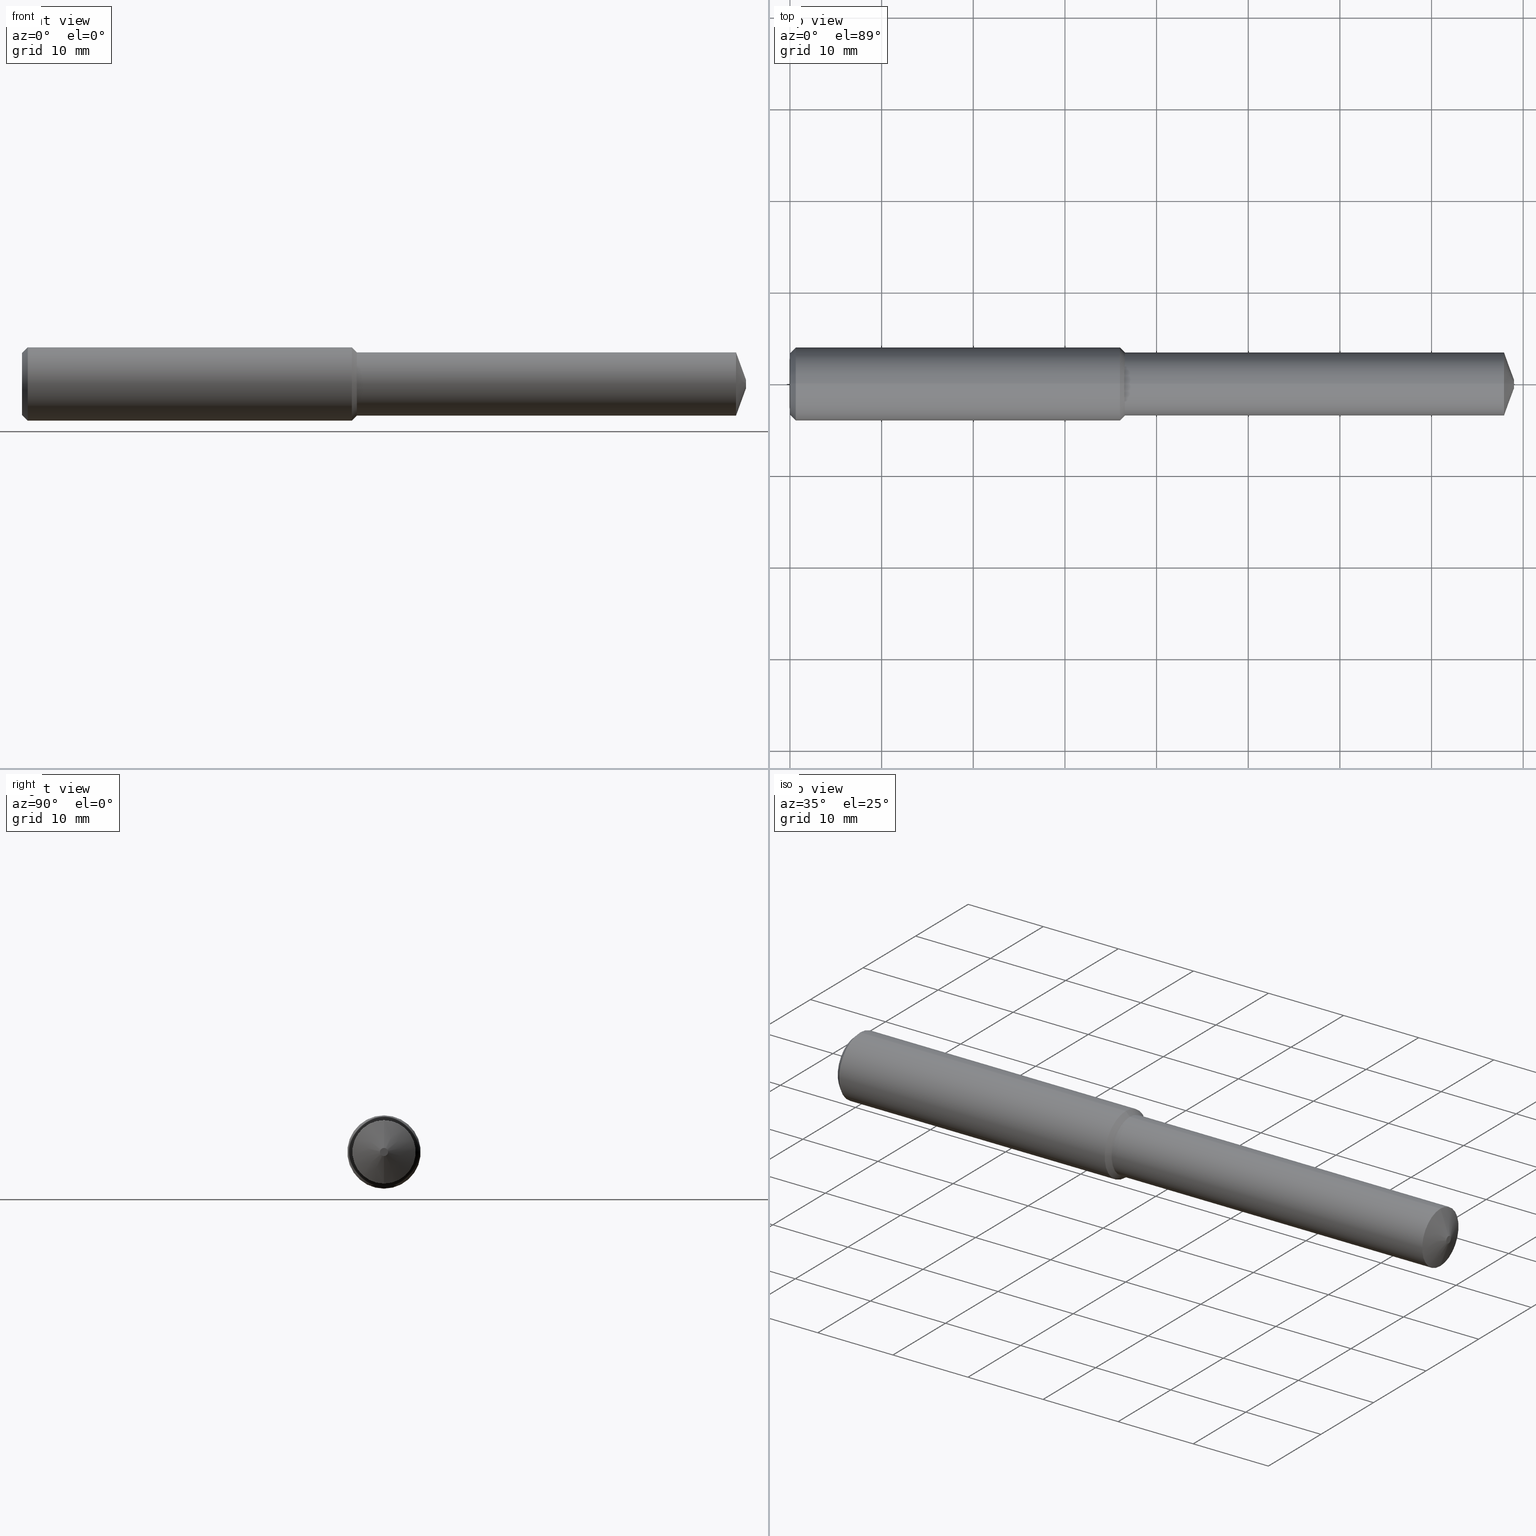
[diagram: canonical four-view strip — front | top / right | iso, engineering-drawing reading convention]
A machine part, canonical four-view strip (front | top / right | iso — engineering-drawing reading convention). The complete STEP part file that produces these views, byte-faithful:
ISO-10303-21;
HEADER;
FILE_DESCRIPTION (( 'STEP AP203' ),
    '1' );
FILE_NAME ('407000-DFX3-272A.STEP',
    '2024-10-02T18:51:29',
    ( '' ),
    ( '' ),
    'SwSTEP 2.0',
    'SolidWorks 2024',
    '' );
FILE_SCHEMA (( 'CONFIG_CONTROL_DESIGN' ));
ENDSEC;

DATA;
#1 = PERSON_AND_ORGANIZATION ( #157, #339 ) ;
#2 = CIRCLE ( 'NONE', #368, 0.1360000000000003983 ) ;
#3 = VERTEX_POINT ( 'NONE', #191 ) ;
#4 = AXIS2_PLACEMENT_3D ( 'NONE', #306, #21, #248 ) ;
#5 = DATE_AND_TIME ( #301, #243 ) ;
#6 = APPLICATION_CONTEXT ( 'configuration controlled 3d designs of mechanical parts and assemblies' ) ;
#7 = ORIENTED_EDGE ( 'NONE', *, *, #280, .F. ) ;
#8 = CC_DESIGN_DATE_AND_TIME_ASSIGNMENT ( #40, #207, ( #36 ) ) ;
#9 = ORIENTED_EDGE ( 'NONE', *, *, #309, .T. ) ;
#10 = DIRECTION ( 'NONE',  ( 0.000000000000000000, 0.000000000000000000, -1.000000000000000000 ) ) ;
#11 = VERTEX_POINT ( 'NONE', #312 ) ;
#12 = CIRCLE ( 'NONE', #315, 0.01750000000000038677 ) ;
#13 = ORIENTED_EDGE ( 'NONE', *, *, #256, .F. ) ;
#14 = EDGE_CURVE ( 'NONE', #99, #240, #189, .T. ) ;
#15 = DIMENSIONAL_EXPONENTS ( 1.000000000000000000, 0.000000000000000000, 0.000000000000000000, 0.000000000000000000, 0.000000000000000000, 0.000000000000000000, 0.000000000000000000 ) ;
#16 = LINE ( 'NONE', #78, #222 ) ;
#17 = DATE_TIME_ROLE ( 'classification_date' ) ;
#18 = DIRECTION ( 'NONE',  ( 1.000000000000000000, 0.000000000000000000, -0.000000000000000000 ) ) ;
#19 = APPROVAL ( #152, 'UNSPECIFIED' ) ;
#20 = EDGE_CURVE ( 'NONE', #240, #3, #183, .T. ) ;
#21 = DIRECTION ( 'NONE',  ( 1.000000000000000000, -0.000000000000000000, -0.000000000000000000 ) ) ;
#22 = CARTESIAN_POINT ( 'NONE',  ( 0.000000000000000000, 0.000000000000000000, 0.000000000000000000 ) ) ;
#23 = DIRECTION ( 'NONE',  ( 1.000000000000000000, -0.000000000000000000, -0.000000000000000000 ) ) ;
#24 = AXIS2_PLACEMENT_3D ( 'NONE', #171, #230, #378 ) ;
#25 = ADVANCED_BREP_SHAPE_REPRESENTATION ( '407000-DFX3-272A', ( #122, #192 ), #34 ) ;
#26 = CARTESIAN_POINT ( 'NONE',  ( 1.438803149606299403, 0.000000000000000000, -0.1360000000000001763 ) ) ;
#27 = DIRECTION ( 'NONE',  ( 1.000000000000000000, -0.000000000000000000, -0.000000000000000000 ) ) ;
#28 = CARTESIAN_POINT ( 'NONE',  ( -0.03808593750000075634, 0.000000000000000000, -0.1574803149606300023 ) ) ;
#29 = APPROVAL_PERSON_ORGANIZATION ( #345, #342, #219 ) ;
#30 = LINE ( 'NONE', #173, #346 ) ;
#31 = APPROVAL_ROLE ( '' ) ;
#32 = ORIENTED_EDGE ( 'NONE', *, *, #307, .F. ) ;
#33 = COORDINATED_UNIVERSAL_TIME_OFFSET ( 8, 0, .BEHIND. ) ;
#34 =( GEOMETRIC_REPRESENTATION_CONTEXT ( 3 ) GLOBAL_UNCERTAINTY_ASSIGNED_CONTEXT ( ( #74 ) ) GLOBAL_UNIT_ASSIGNED_CONTEXT ( ( #331, #244, #271 ) ) REPRESENTATION_CONTEXT ( 'NONE', 'WORKASPACE' ) );
#35 = ORIENTED_EDGE ( 'NONE', *, *, #374, .F. ) ;
#36 = PRODUCT_DEFINITION ( 'UNKNOWN', '', #118, #305 ) ;
#37 = PERSON_AND_ORGANIZATION_ROLE ( 'creator' ) ;
#38 = EDGE_LOOP ( 'NONE', ( #113, #180, #359, #266 ) ) ;
#39 = VECTOR ( 'NONE', #163, 39.37007874015748143 ) ;
#40 = DATE_AND_TIME ( #124, #281 ) ;
#41 = VERTEX_POINT ( 'NONE', #333 ) ;
#42 = ORIENTED_EDGE ( 'NONE', *, *, #288, .T. ) ;
#43 = PERSON_AND_ORGANIZATION_ROLE ( 'design_supplier' ) ;
#44 = CARTESIAN_POINT ( 'NONE',  ( 3.110236220472441193, 0.000000000000000000, 0.000000000000000000 ) ) ;
#45 = FACE_OUTER_BOUND ( 'NONE', #208, .T. ) ;
#46 = EDGE_CURVE ( 'NONE', #270, #41, #370, .T. ) ;
#47 = CARTESIAN_POINT ( 'NONE',  ( -0.03808593750000075634, 0.000000000000000000, 0.000000000000000000 ) ) ;
#48 = VECTOR ( 'NONE', #51, 39.37007874015748854 ) ;
#49 = CARTESIAN_POINT ( 'NONE',  ( 3.110236220472441193, 0.000000000000000000, 0.01750000000000038677 ) ) ;
#50 = DIRECTION ( 'NONE',  ( -0.000000000000000000, 0.000000000000000000, -1.000000000000000000 ) ) ;
#51 = DIRECTION ( 'NONE',  ( -0.3420201433256656598, 1.150791560227851502E-16, -0.9396926207859094271 ) ) ;
#52 = EDGE_CURVE ( 'NONE', #215, #182, #160, .T. ) ;
#53 = APPROVAL_PERSON_ORGANIZATION ( #238, #145, #31 ) ;
#54 = AXIS2_PLACEMENT_3D ( 'NONE', #87, #27, #168 ) ;
#55 = LINE ( 'NONE', #349, #365 ) ;
#56 = DIRECTION ( 'NONE',  ( 0.000000000000000000, 0.000000000000000000, 1.000000000000000000 ) ) ;
#57 = VECTOR ( 'NONE', #367, 39.37007874015748143 ) ;
#58 = ADVANCED_FACE ( 'NONE', ( #112 ), #253, .T. ) ;
#59 = CYLINDRICAL_SURFACE ( 'NONE', #98, 0.1360000000000002873 ) ;
#60 = CONICAL_SURFACE ( 'NONE', #166, 0.1360000000000001763, 0.7853981633974407295 ) ;
#61 = ADVANCED_FACE ( 'NONE', ( #308 ), #369, .T. ) ;
#62 = DIRECTION ( 'NONE',  ( 0.000000000000000000, 0.000000000000000000, -1.000000000000000000 ) ) ;
#63 = VECTOR ( 'NONE', #286, 39.37007874015748143 ) ;
#64 = ADVANCED_FACE ( 'NONE', ( #45 ), #285, .T. ) ;
#65 = EDGE_LOOP ( 'NONE', ( #326, #73, #323, #185 ) ) ;
#66 = FACE_OUTER_BOUND ( 'NONE', #101, .T. ) ;
#67 = ORIENTED_EDGE ( 'NONE', *, *, #14, .T. ) ;
#68 = CYLINDRICAL_SURFACE ( 'NONE', #267, 0.1574803149606300023 ) ;
#69 = ORIENTED_EDGE ( 'NONE', *, *, #117, .T. ) ;
#70 = ORIENTED_EDGE ( 'NONE', *, *, #229, .F. ) ;
#71 = PRODUCT_RELATED_PRODUCT_CATEGORY ( 'detail', '', ( #121 ) ) ;
#72 = DIRECTION ( 'NONE',  ( 0.000000000000000000, 0.000000000000000000, -1.000000000000000000 ) ) ;
#73 = ORIENTED_EDGE ( 'NONE', *, *, #280, .T. ) ;
#74 = UNCERTAINTY_MEASURE_WITH_UNIT (LENGTH_MEASURE( 1.000000000000000082E-05 ), #331, 'distance_accuracy_value', 'NONE');
#75 = DIRECTION ( 'NONE',  ( 1.000000000000000000, -0.000000000000000000, -0.000000000000000000 ) ) ;
#76 = VECTOR ( 'NONE', #375, 39.37007874015748143 ) ;
#77 = CARTESIAN_POINT ( 'NONE',  ( 1.438803149606299403, 0.000000000000000000, 0.1360000000000001763 ) ) ;
#78 = CARTESIAN_POINT ( 'NONE',  ( 0.02500000000000000139, 0.000000000000000000, -0.1574803149606299191 ) ) ;
#79 = CC_DESIGN_PERSON_AND_ORGANIZATION_ASSIGNMENT ( #1, #205, ( #36 ) ) ;
#80 = EDGE_LOOP ( 'NONE', ( #213, #242, #70, #131 ) ) ;
#81 = CC_DESIGN_APPROVAL ( #342, ( #151 ) ) ;
#82 = DIRECTION ( 'NONE',  ( 0.000000000000000000, 0.000000000000000000, 1.000000000000000000 ) ) ;
#83 = ADVANCED_FACE ( 'NONE', ( #194 ), #103, .T. ) ;
#84 = DIRECTION ( 'NONE',  ( 0.000000000000000000, 0.000000000000000000, -1.000000000000000000 ) ) ;
#85 = LINE ( 'NONE', #377, #48 ) ;
#86 = SHAPE_DEFINITION_REPRESENTATION ( #123, #25 ) ;
#87 = CARTESIAN_POINT ( 'NONE',  ( 0.02500000000000000139, 0.000000000000000000, 0.000000000000000000 ) ) ;
#88 = DIRECTION ( 'NONE',  ( 0.000000000000000000, 0.000000000000000000, -1.000000000000000000 ) ) ;
#89 = LINE ( 'NONE', #258, #63 ) ;
#90 = AXIS2_PLACEMENT_3D ( 'NONE', #106, #161, #82 ) ;
#91 = APPROVAL_DATE_TIME ( #5, #145 ) ;
#92 = ORIENTED_EDGE ( 'NONE', *, *, #20, .T. ) ;
#93 = CARTESIAN_POINT ( 'NONE',  ( 3.061616997868361794E-19, 0.1324803149606299246, 0.000000000000000000 ) ) ;
#94 = ORIENTED_EDGE ( 'NONE', *, *, #309, .F. ) ;
#95 = PERSON_AND_ORGANIZATION ( #157, #339 ) ;
#96 = ORIENTED_EDGE ( 'NONE', *, *, #109, .T. ) ;
#97 = APPLICATION_PROTOCOL_DEFINITION ( 'international standard', 'config_control_design', 1994, #6 ) ;
#98 = AXIS2_PLACEMENT_3D ( 'NONE', #341, #150, #235 ) ;
#99 = VERTEX_POINT ( 'NONE', #136 ) ;
#100 = CARTESIAN_POINT ( 'NONE',  ( -0.03808593750000075634, 0.000000000000000000, 0.000000000000000000 ) ) ;
#101 = EDGE_LOOP ( 'NONE', ( #158, #7 ) ) ;
#102 = COORDINATED_UNIVERSAL_TIME_OFFSET ( 8, 0, .BEHIND. ) ;
#103 = PLANE ( 'NONE',  #226 ) ;
#104 = CC_DESIGN_PERSON_AND_ORGANIZATION_ASSIGNMENT ( #108, #43, ( #118 ) ) ;
#105 = DATE_AND_TIME ( #223, #172 ) ;
#106 = CARTESIAN_POINT ( 'NONE',  ( 3.110236220472441193, 0.000000000000000000, 0.000000000000000000 ) ) ;
#107 = CC_DESIGN_APPROVAL ( #145, ( #36 ) ) ;
#108 = PERSON_AND_ORGANIZATION ( #157, #339 ) ;
#109 = EDGE_CURVE ( 'NONE', #270, #362, #186, .T. ) ;
#110 = DIRECTION ( 'NONE',  ( 0.000000000000000000, 0.000000000000000000, 1.000000000000000000 ) ) ;
#111 = AXIS2_PLACEMENT_3D ( 'NONE', #340, #335, #283 ) ;
#112 = FACE_OUTER_BOUND ( 'NONE', #80, .T. ) ;
#113 = ORIENTED_EDGE ( 'NONE', *, *, #288, .F. ) ;
#114 = DIRECTION ( 'NONE',  ( 1.000000000000000000, -0.000000000000000000, -0.000000000000000000 ) ) ;
#115 = DIRECTION ( 'NONE',  ( 1.000000000000000000, -0.000000000000000000, -0.000000000000000000 ) ) ;
#116 = CARTESIAN_POINT ( 'NONE',  ( 3.110236220472441193, 0.000000000000000000, 0.000000000000000000 ) ) ;
#117 = EDGE_CURVE ( 'NONE', #178, #99, #352, .T. ) ;
#118 = PRODUCT_DEFINITION_FORMATION_WITH_SPECIFIED_SOURCE ( 'ANY', '', #121, .NOT_KNOWN. ) ;
#119 = DIRECTION ( 'NONE',  ( -1.000000000000000000, 0.000000000000000000, 0.000000000000000000 ) ) ;
#120 = CARTESIAN_POINT ( 'NONE',  ( 0.02500000000000000139, 1.928577636452525534E-17, 0.1574803149606299191 ) ) ;
#121 = PRODUCT ( '407000-DFX3-272A', '407000-DFX3-272A', '', ( #262 ) ) ;
#122 = MANIFOLD_SOLID_BREP ( 'Body', #293 ) ;
#123 = PRODUCT_DEFINITION_SHAPE ( 'NONE', 'NONE',  #36 ) ;
#124 = CALENDAR_DATE ( 2024, 2, 10 ) ;
#125 = ORIENTED_EDGE ( 'NONE', *, *, #109, .F. ) ;
#126 = CALENDAR_DATE ( 2024, 2, 10 ) ;
#127 = ORIENTED_EDGE ( 'NONE', *, *, #46, .T. ) ;
#128 = ORIENTED_EDGE ( 'NONE', *, *, #196, .F. ) ;
#129 = DIRECTION ( 'NONE',  ( 1.000000000000000000, -0.000000000000000000, -0.000000000000000000 ) ) ;
#130 = CIRCLE ( 'NONE', #24, 0.1574803149606300579 ) ;
#131 = ORIENTED_EDGE ( 'NONE', *, *, #268, .F. ) ;
#132 = ADVANCED_FACE ( 'NONE', ( #363 ), #60, .T. ) ;
#133 = EDGE_LOOP ( 'NONE', ( #279, #296, #357, #245 ) ) ;
#134 = CARTESIAN_POINT ( 'NONE',  ( -0.03808593750000075634, 0.000000000000000000, 0.000000000000000000 ) ) ;
#135 = PERSON_AND_ORGANIZATION_ROLE ( 'classification_officer' ) ;
#136 = CARTESIAN_POINT ( 'NONE',  ( 0.000000000000000000, 1.775496786559105798E-17, 0.1324803149606299246 ) ) ;
#137 = CIRCLE ( 'NONE', #233, 0.1574803149606300579 ) ;
#138 = CARTESIAN_POINT ( 'NONE',  ( 1.417322834645669216, 0.000000000000000000, 0.1574803149606300579 ) ) ;
#139 = CC_DESIGN_PERSON_AND_ORGANIZATION_ASSIGNMENT ( #298, #37, ( #118 ) ) ;
#140 = ORIENTED_EDGE ( 'NONE', *, *, #198, .F. ) ;
#141 = DIRECTION ( 'NONE',  ( 1.000000000000000000, -0.000000000000000000, -0.000000000000000000 ) ) ;
#142 = DIRECTION ( 'NONE',  ( 0.000000000000000000, 0.000000000000000000, -1.000000000000000000 ) ) ;
#143 = EDGE_CURVE ( 'NONE', #215, #332, #334, .T. ) ;
#144 = CARTESIAN_POINT ( 'NONE',  ( 1.438803149606299403, 1.665519646840403453E-17, 0.1360000000000001763 ) ) ;
#145 = APPROVAL ( #177, 'UNSPECIFIED' ) ;
#146 = FACE_OUTER_BOUND ( 'NONE', #133, .T. ) ;
#147 = APPROVAL_PERSON_ORGANIZATION ( #324, #19, #155 ) ;
#148 = CIRCLE ( 'NONE', #54, 0.1574803149606299191 ) ;
#149 = VECTOR ( 'NONE', #114, 39.37007874015748143 ) ;
#150 = DIRECTION ( 'NONE',  ( 1.000000000000000000, -0.000000000000000000, -0.000000000000000000 ) ) ;
#151 = SECURITY_CLASSIFICATION ( '', '', #304 ) ;
#152 = APPROVAL_STATUS ( 'not_yet_approved' ) ;
#153 = ORIENTED_EDGE ( 'NONE', *, *, #268, .T. ) ;
#154 = EDGE_LOOP ( 'NONE', ( #69, #67, #140, #221 ) ) ;
#155 = APPROVAL_ROLE ( '' ) ;
#156 = ORIENTED_EDGE ( 'NONE', *, *, #46, .F. ) ;
#157 = PERSON ( 'UNSPECIFIED', 'UNSPECIFIED', 'UNSPECIFIED', ('UNSPECIFIED'), ('UNSPECIFIED'), ('UNSPECIFIED') ) ;
#158 = ORIENTED_EDGE ( 'NONE', *, *, #117, .F. ) ;
#159 = CONICAL_SURFACE ( 'NONE', #199, 0.1574803149606299191, 0.7853981633974483900 ) ;
#160 = LINE ( 'NONE', #77, #39 ) ;
#161 = DIRECTION ( 'NONE',  ( -1.000000000000000000, 0.000000000000000000, 0.000000000000000000 ) ) ;
#162 = DIRECTION ( 'NONE',  ( 0.000000000000000000, 0.000000000000000000, -1.000000000000000000 ) ) ;
#163 = DIRECTION ( 'NONE',  ( -0.7071067811865529018, 0.000000000000000000, 0.7071067811865421326 ) ) ;
#164 = CARTESIAN_POINT ( 'NONE',  ( 3.110236220472441193, 0.000000000000000000, 0.000000000000000000 ) ) ;
#165 = DIRECTION ( 'NONE',  ( 1.000000000000000000, -0.000000000000000000, -0.000000000000000000 ) ) ;
#166 = AXIS2_PLACEMENT_3D ( 'NONE', #251, #187, #110 ) ;
#167 = CIRCLE ( 'NONE', #4, 0.1360000000000001763 ) ;
#168 = DIRECTION ( 'NONE',  ( 0.000000000000000000, 0.000000000000000000, -1.000000000000000000 ) ) ;
#169 = EDGE_CURVE ( 'NONE', #332, #215, #167, .T. ) ;
#170 = CARTESIAN_POINT ( 'NONE',  ( 0.02500000000000000139, 0.000000000000000000, 0.000000000000000000 ) ) ;
#171 = CARTESIAN_POINT ( 'NONE',  ( 1.417322834645669216, 0.000000000000000000, 0.000000000000000000 ) ) ;
#172 = LOCAL_TIME ( 11, 51, 29.00000000000000000, #190 ) ;
#173 = CARTESIAN_POINT ( 'NONE',  ( -0.03808593750000075634, 0.000000000000000000, -0.1360000000000002873 ) ) ;
#174 = PLANE ( 'NONE',  #220 ) ;
#175 = EDGE_LOOP ( 'NONE', ( #96, #372 ) ) ;
#176 = CC_DESIGN_DATE_AND_TIME_ASSIGNMENT ( #105, #17, ( #151 ) ) ;
#177 = APPROVAL_STATUS ( 'not_yet_approved' ) ;
#178 = VERTEX_POINT ( 'NONE', #276 ) ;
#179 = EDGE_CURVE ( 'NONE', #178, #3, #16, .T. ) ;
#180 = ORIENTED_EDGE ( 'NONE', *, *, #143, .T. ) ;
#181 = CARTESIAN_POINT ( 'NONE',  ( 0.000000000000000000, 0.000000000000000000, 0.000000000000000000 ) ) ;
#182 = VERTEX_POINT ( 'NONE', #138 ) ;
#183 = CIRCLE ( 'NONE', #111, 0.1574803149606299191 ) ;
#184 = APPLICATION_PROTOCOL_DEFINITION ( 'international standard', 'config_control_design', 1994, #354 ) ;
#185 = ORIENTED_EDGE ( 'NONE', *, *, #20, .F. ) ;
#186 = CIRCLE ( 'NONE', #254, 0.01750000000000038677 ) ;
#187 = DIRECTION ( 'NONE',  ( -1.000000000000000000, 0.000000000000000000, 0.000000000000000000 ) ) ;
#188 = DIRECTION ( 'NONE',  ( 0.000000000000000000, 0.000000000000000000, -1.000000000000000000 ) ) ;
#189 = LINE ( 'NONE', #252, #57 ) ;
#190 = COORDINATED_UNIVERSAL_TIME_OFFSET ( 8, 0, .BEHIND. ) ;
#191 = CARTESIAN_POINT ( 'NONE',  ( 0.02500000000000000139, 0.000000000000000000, -0.1574803149606299191 ) ) ;
#192 = AXIS2_PLACEMENT_3D ( 'NONE', #181, #358, #264 ) ;
#193 = AXIS2_PLACEMENT_3D ( 'NONE', #116, #119, #56 ) ;
#194 = FACE_OUTER_BOUND ( 'NONE', #175, .T. ) ;
#195 = FACE_OUTER_BOUND ( 'NONE', #154, .T. ) ;
#196 = EDGE_CURVE ( 'NONE', #362, #11, #85, .T. ) ;
#197 = DIRECTION ( 'NONE',  ( 1.000000000000000000, -0.000000000000000000, -0.000000000000000000 ) ) ;
#198 = EDGE_CURVE ( 'NONE', #3, #240, #148, .T. ) ;
#199 = AXIS2_PLACEMENT_3D ( 'NONE', #292, #141, #201 ) ;
#200 = CARTESIAN_POINT ( 'NONE',  ( 1.417322834645669216, 0.000000000000000000, 0.000000000000000000 ) ) ;
#201 = DIRECTION ( 'NONE',  ( 0.000000000000000000, 0.000000000000000000, -1.000000000000000000 ) ) ;
#202 = FACE_OUTER_BOUND ( 'NONE', #65, .T. ) ;
#203 = AXIS2_PLACEMENT_3D ( 'NONE', #134, #227, #224 ) ;
#204 = CONICAL_SURFACE ( 'NONE', #246, 0.1574803149606299191, 0.7853981633974483900 ) ;
#205 = PERSON_AND_ORGANIZATION_ROLE ( 'creator' ) ;
#206 = ORIENTED_EDGE ( 'NONE', *, *, #330, .F. ) ;
#207 = DATE_TIME_ROLE ( 'creation_date' ) ;
#208 = EDGE_LOOP ( 'NONE', ( #128, #125, #127, #355 ) ) ;
#209 = APPROVAL_DATE_TIME ( #356, #19 ) ;
#210 = EDGE_LOOP ( 'NONE', ( #299, #272, #325, #310 ) ) ;
#211 = AXIS2_PLACEMENT_3D ( 'NONE', #255, #320, #88 ) ;
#212 = COORDINATED_UNIVERSAL_TIME_OFFSET ( 8, 0, .BEHIND. ) ;
#213 = ORIENTED_EDGE ( 'NONE', *, *, #198, .T. ) ;
#214 = LENGTH_MEASURE_WITH_UNIT ( LENGTH_MEASURE( 0.02539999999999999897 ), #237 );
#215 = VERTEX_POINT ( 'NONE', #144 ) ;
#216 = APPROVAL_DATE_TIME ( #366, #342 ) ;
#217 = DIRECTION ( 'NONE',  ( 1.000000000000000000, -0.000000000000000000, -0.000000000000000000 ) ) ;
#218 = AXIS2_PLACEMENT_3D ( 'NONE', #22, #217, #247 ) ;
#219 = APPROVAL_ROLE ( '' ) ;
#220 = AXIS2_PLACEMENT_3D ( 'NONE', #93, #322, #295 ) ;
#221 = ORIENTED_EDGE ( 'NONE', *, *, #179, .F. ) ;
#222 = VECTOR ( 'NONE', #282, 39.37007874015748143 ) ;
#223 = CALENDAR_DATE ( 2024, 2, 10 ) ;
#224 = DIRECTION ( 'NONE',  ( 0.000000000000000000, 0.000000000000000000, -1.000000000000000000 ) ) ;
#225 = DIRECTION ( 'NONE',  ( 1.000000000000000000, -0.000000000000000000, -0.000000000000000000 ) ) ;
#226 = AXIS2_PLACEMENT_3D ( 'NONE', #44, #18, #50 ) ;
#227 = DIRECTION ( 'NONE',  ( 1.000000000000000000, -0.000000000000000000, -0.000000000000000000 ) ) ;
#228 = CIRCLE ( 'NONE', #211, 0.1360000000000003983 ) ;
#229 = EDGE_CURVE ( 'NONE', #353, #182, #137, .T. ) ;
#230 = DIRECTION ( 'NONE',  ( 1.000000000000000000, -0.000000000000000000, -0.000000000000000000 ) ) ;
#231 = LINE ( 'NONE', #376, #76 ) ;
#232 = CARTESIAN_POINT ( 'NONE',  ( 3.110236220472441193, 0.000000000000000000, 0.01750000000000038677 ) ) ;
#233 = AXIS2_PLACEMENT_3D ( 'NONE', #200, #261, #62 ) ;
#234 = FACE_OUTER_BOUND ( 'NONE', #273, .T. ) ;
#235 = DIRECTION ( 'NONE',  ( 0.000000000000000000, 0.000000000000000000, -1.000000000000000000 ) ) ;
#236 = ADVANCED_FACE ( 'NONE', ( #202 ), #204, .T. ) ;
#237 =( LENGTH_UNIT ( ) NAMED_UNIT ( * ) SI_UNIT ( $, .METRE. ) );
#238 = PERSON_AND_ORGANIZATION ( #157, #339 ) ;
#239 = EDGE_CURVE ( 'NONE', #332, #353, #89, .T. ) ;
#240 = VERTEX_POINT ( 'NONE', #120 ) ;
#241 = DIRECTION ( 'NONE',  ( 1.000000000000000000, -0.000000000000000000, -0.000000000000000000 ) ) ;
#242 = ORIENTED_EDGE ( 'NONE', *, *, #256, .T. ) ;
#243 = LOCAL_TIME ( 11, 51, 29.00000000000000000, #33 ) ;
#244 =( NAMED_UNIT ( * ) PLANE_ANGLE_UNIT ( ) SI_UNIT ( $, .RADIAN. ) );
#245 = ORIENTED_EDGE ( 'NONE', *, *, #52, .F. ) ;
#246 = AXIS2_PLACEMENT_3D ( 'NONE', #170, #257, #84 ) ;
#247 = DIRECTION ( 'NONE',  ( 0.000000000000000000, 0.000000000000000000, -1.000000000000000000 ) ) ;
#248 = DIRECTION ( 'NONE',  ( 0.000000000000000000, 0.000000000000000000, -1.000000000000000000 ) ) ;
#249 = CIRCLE ( 'NONE', #265, 0.1324803149606299246 ) ;
#250 = LOCAL_TIME ( 11, 51, 29.00000000000000000, #102 ) ;
#251 = CARTESIAN_POINT ( 'NONE',  ( 1.438803149606299403, 0.000000000000000000, 0.000000000000000000 ) ) ;
#252 = CARTESIAN_POINT ( 'NONE',  ( 0.02500000000000000139, 1.928577636452524610E-17, 0.1574803149606299191 ) ) ;
#253 = CYLINDRICAL_SURFACE ( 'NONE', #274, 0.1574803149606300023 ) ;
#254 = AXIS2_PLACEMENT_3D ( 'NONE', #164, #23, #338 ) ;
#255 = CARTESIAN_POINT ( 'NONE',  ( 3.067105747711896591, 0.000000000000000000, 0.000000000000000000 ) ) ;
#256 = EDGE_CURVE ( 'NONE', #240, #182, #231, .T. ) ;
#257 = DIRECTION ( 'NONE',  ( 1.000000000000000000, -0.000000000000000000, -0.000000000000000000 ) ) ;
#258 = CARTESIAN_POINT ( 'NONE',  ( 1.438803149606299403, 1.665519646840402529E-17, -0.1360000000000001763 ) ) ;
#259 = CARTESIAN_POINT ( 'NONE',  ( 1.438803149606299403, 0.000000000000000000, 0.000000000000000000 ) ) ;
#260 = AXIS2_PLACEMENT_3D ( 'NONE', #259, #290, #350 ) ;
#261 = DIRECTION ( 'NONE',  ( 1.000000000000000000, -0.000000000000000000, -0.000000000000000000 ) ) ;
#262 = MECHANICAL_CONTEXT ( 'NONE', #354, 'mechanical' ) ;
#263 = ADVANCED_FACE ( 'NONE', ( #318 ), #361, .T. ) ;
#264 = DIRECTION ( 'NONE',  ( 1.000000000000000000, 0.000000000000000000, 0.000000000000000000 ) ) ;
#265 = AXIS2_PLACEMENT_3D ( 'NONE', #314, #197, #321 ) ;
#266 = ORIENTED_EDGE ( 'NONE', *, *, #344, .F. ) ;
#267 = AXIS2_PLACEMENT_3D ( 'NONE', #100, #241, #10 ) ;
#268 = EDGE_CURVE ( 'NONE', #3, #353, #289, .T. ) ;
#269 = COORDINATED_UNIVERSAL_TIME_OFFSET ( 8, 0, .BEHIND. ) ;
#270 = VERTEX_POINT ( 'NONE', #232 ) ;
#271 =( NAMED_UNIT ( * ) SI_UNIT ( $, .STERADIAN. ) SOLID_ANGLE_UNIT ( ) );
#272 = ORIENTED_EDGE ( 'NONE', *, *, #143, .F. ) ;
#273 = EDGE_LOOP ( 'NONE', ( #313, #42, #94, #32 ) ) ;
#274 = AXIS2_PLACEMENT_3D ( 'NONE', #47, #75, #188 ) ;
#275 = PERSON_AND_ORGANIZATION ( #157, #339 ) ;
#276 = CARTESIAN_POINT ( 'NONE',  ( 0.000000000000000000, 0.000000000000000000, -0.1324803149606299246 ) ) ;
#277 = ADVANCED_FACE ( 'NONE', ( #195 ), #159, .T. ) ;
#278 = CALENDAR_DATE ( 2024, 2, 10 ) ;
#279 = ORIENTED_EDGE ( 'NONE', *, *, #169, .F. ) ;
#280 = EDGE_CURVE ( 'NONE', #99, #178, #249, .T. ) ;
#281 = LOCAL_TIME ( 11, 51, 29.00000000000000000, #212 ) ;
#282 = DIRECTION ( 'NONE',  ( 0.7071067811865474617, 0.000000000000000000, -0.7071067811865475727 ) ) ;
#283 = DIRECTION ( 'NONE',  ( 0.000000000000000000, 0.000000000000000000, -1.000000000000000000 ) ) ;
#284 = DIRECTION ( 'NONE',  ( -0.3420201433256656598, 0.000000000000000000, 0.9396926207859094271 ) ) ;
#285 = CONICAL_SURFACE ( 'NONE', #90, 0.01750000000000038677, 1.221730476396033938 ) ;
#286 = DIRECTION ( 'NONE',  ( -0.7071067811865529018, 8.659560562354867531E-17, -0.7071067811865421326 ) ) ;
#287 = FACE_OUTER_BOUND ( 'NONE', #302, .T. ) ;
#288 = EDGE_CURVE ( 'NONE', #215, #41, #55, .T. ) ;
#289 = LINE ( 'NONE', #28, #149 ) ;
#290 = DIRECTION ( 'NONE',  ( -1.000000000000000000, 0.000000000000000000, 0.000000000000000000 ) ) ;
#291 = CC_DESIGN_SECURITY_CLASSIFICATION ( #151, ( #118 ) ) ;
#292 = CARTESIAN_POINT ( 'NONE',  ( 0.02500000000000000139, 0.000000000000000000, 0.000000000000000000 ) ) ;
#293 = CLOSED_SHELL ( 'NONE', ( #277, #58, #300, #348, #263, #371, #83, #64, #61, #132, #364, #236 ) ) ;
#294 = CC_DESIGN_PERSON_AND_ORGANIZATION_ASSIGNMENT ( #95, #351, ( #121 ) ) ;
#295 = DIRECTION ( 'NONE',  ( 0.000000000000000000, 0.000000000000000000, 1.000000000000000000 ) ) ;
#296 = ORIENTED_EDGE ( 'NONE', *, *, #239, .T. ) ;
#297 = CONICAL_SURFACE ( 'NONE', #260, 0.1360000000000001763, 0.7853981633974407295 ) ;
#298 = PERSON_AND_ORGANIZATION ( #157, #339 ) ;
#299 = ORIENTED_EDGE ( 'NONE', *, *, #239, .F. ) ;
#300 = ADVANCED_FACE ( 'NONE', ( #146 ), #297, .T. ) ;
#301 = CALENDAR_DATE ( 2024, 2, 10 ) ;
#302 = EDGE_LOOP ( 'NONE', ( #13, #92, #153, #206 ) ) ;
#303 = EDGE_LOOP ( 'NONE', ( #35, #329, #9, #156 ) ) ;
#304 = SECURITY_CLASSIFICATION_LEVEL ( 'unclassified' ) ;
#305 = DESIGN_CONTEXT ( 'detailed design', #6, 'design' ) ;
#306 = CARTESIAN_POINT ( 'NONE',  ( 1.438803149606299403, 0.000000000000000000, 0.000000000000000000 ) ) ;
#307 = EDGE_CURVE ( 'NONE', #332, #11, #30, .T. ) ;
#308 = FACE_OUTER_BOUND ( 'NONE', #38, .T. ) ;
#309 = EDGE_CURVE ( 'NONE', #11, #41, #228, .T. ) ;
#310 = ORIENTED_EDGE ( 'NONE', *, *, #330, .T. ) ;
#311 = APPROVAL_STATUS ( 'not_yet_approved' ) ;
#312 = CARTESIAN_POINT ( 'NONE',  ( 3.067105747711896591, 1.665519646840405302E-17, -0.1360000000000003983 ) ) ;
#313 = ORIENTED_EDGE ( 'NONE', *, *, #169, .T. ) ;
#314 = CARTESIAN_POINT ( 'NONE',  ( 0.000000000000000000, 0.000000000000000000, 0.000000000000000000 ) ) ;
#315 = AXIS2_PLACEMENT_3D ( 'NONE', #328, #129, #72 ) ;
#316 = CARTESIAN_POINT ( 'NONE',  ( 3.110236220472441193, 9.399164183455982845E-18, -0.01750000000000038677 ) ) ;
#317 = AXIS2_PLACEMENT_3D ( 'NONE', #336, #225, #162 ) ;
#318 = FACE_OUTER_BOUND ( 'NONE', #303, .T. ) ;
#319 = VECTOR ( 'NONE', #284, 39.37007874015748854 ) ;
#320 = DIRECTION ( 'NONE',  ( 1.000000000000000000, -0.000000000000000000, -0.000000000000000000 ) ) ;
#321 = DIRECTION ( 'NONE',  ( 0.000000000000000000, 0.000000000000000000, -1.000000000000000000 ) ) ;
#322 = DIRECTION ( 'NONE',  ( -1.000000000000000000, 0.000000000000000000, 0.000000000000000000 ) ) ;
#323 = ORIENTED_EDGE ( 'NONE', *, *, #179, .T. ) ;
#324 = PERSON_AND_ORGANIZATION ( #157, #339 ) ;
#325 = ORIENTED_EDGE ( 'NONE', *, *, #52, .T. ) ;
#326 = ORIENTED_EDGE ( 'NONE', *, *, #14, .F. ) ;
#327 = CC_DESIGN_APPROVAL ( #19, ( #118 ) ) ;
#328 = CARTESIAN_POINT ( 'NONE',  ( 3.110236220472441193, 0.000000000000000000, 0.000000000000000000 ) ) ;
#329 = ORIENTED_EDGE ( 'NONE', *, *, #196, .T. ) ;
#330 = EDGE_CURVE ( 'NONE', #182, #353, #130, .T. ) ;
#331 =( CONVERSION_BASED_UNIT ( 'INCH', #214 ) LENGTH_UNIT ( ) NAMED_UNIT ( #15 ) );
#332 = VERTEX_POINT ( 'NONE', #26 ) ;
#333 = CARTESIAN_POINT ( 'NONE',  ( 3.067105747711896591, 0.000000000000000000, 0.1360000000000003983 ) ) ;
#334 = CIRCLE ( 'NONE', #317, 0.1360000000000001763 ) ;
#335 = DIRECTION ( 'NONE',  ( 1.000000000000000000, -0.000000000000000000, -0.000000000000000000 ) ) ;
#336 = CARTESIAN_POINT ( 'NONE',  ( 1.438803149606299403, 0.000000000000000000, 0.000000000000000000 ) ) ;
#337 = CC_DESIGN_PERSON_AND_ORGANIZATION_ASSIGNMENT ( #275, #135, ( #151 ) ) ;
#338 = DIRECTION ( 'NONE',  ( 0.000000000000000000, 0.000000000000000000, -1.000000000000000000 ) ) ;
#339 = ORGANIZATION ( 'UNSPECIFIED', 'UNSPECIFIED', '' ) ;
#340 = CARTESIAN_POINT ( 'NONE',  ( 0.02500000000000000139, 0.000000000000000000, 0.000000000000000000 ) ) ;
#341 = CARTESIAN_POINT ( 'NONE',  ( -0.03808593750000075634, 0.000000000000000000, 0.000000000000000000 ) ) ;
#342 = APPROVAL ( #311, 'UNSPECIFIED' ) ;
#343 = CARTESIAN_POINT ( 'NONE',  ( 1.417322834645669216, 1.928577636452526458E-17, -0.1574803149606300579 ) ) ;
#344 = EDGE_CURVE ( 'NONE', #41, #11, #2, .T. ) ;
#345 = PERSON_AND_ORGANIZATION ( #157, #339 ) ;
#346 = VECTOR ( 'NONE', #165, 39.37007874015748143 ) ;
#347 = DIRECTION ( 'NONE',  ( 1.000000000000000000, -0.000000000000000000, -0.000000000000000000 ) ) ;
#348 = ADVANCED_FACE ( 'NONE', ( #234 ), #59, .T. ) ;
#349 = CARTESIAN_POINT ( 'NONE',  ( -0.03808593750000075634, 1.665519646840404069E-17, 0.1360000000000002873 ) ) ;
#350 = DIRECTION ( 'NONE',  ( 0.000000000000000000, 0.000000000000000000, 1.000000000000000000 ) ) ;
#351 = PERSON_AND_ORGANIZATION_ROLE ( 'design_owner' ) ;
#352 = CIRCLE ( 'NONE', #218, 0.1324803149606299246 ) ;
#353 = VERTEX_POINT ( 'NONE', #343 ) ;
#354 = APPLICATION_CONTEXT ( 'configuration controlled 3d designs of mechanical parts and assemblies' ) ;
#355 = ORIENTED_EDGE ( 'NONE', *, *, #344, .T. ) ;
#356 = DATE_AND_TIME ( #126, #360 ) ;
#357 = ORIENTED_EDGE ( 'NONE', *, *, #229, .T. ) ;
#358 = DIRECTION ( 'NONE',  ( 0.000000000000000000, 0.000000000000000000, 1.000000000000000000 ) ) ;
#359 = ORIENTED_EDGE ( 'NONE', *, *, #307, .T. ) ;
#360 = LOCAL_TIME ( 11, 51, 29.00000000000000000, #269 ) ;
#361 = CONICAL_SURFACE ( 'NONE', #193, 0.01750000000000038677, 1.221730476396033938 ) ;
#362 = VERTEX_POINT ( 'NONE', #316 ) ;
#363 = FACE_OUTER_BOUND ( 'NONE', #210, .T. ) ;
#364 = ADVANCED_FACE ( 'NONE', ( #287 ), #68, .T. ) ;
#365 = VECTOR ( 'NONE', #347, 39.37007874015748143 ) ;
#366 = DATE_AND_TIME ( #278, #250 ) ;
#367 = DIRECTION ( 'NONE',  ( 0.7071067811865474617, 8.659560562354934091E-17, 0.7071067811865475727 ) ) ;
#368 = AXIS2_PLACEMENT_3D ( 'NONE', #373, #115, #142 ) ;
#369 = CYLINDRICAL_SURFACE ( 'NONE', #203, 0.1360000000000002873 ) ;
#370 = LINE ( 'NONE', #49, #319 ) ;
#371 = ADVANCED_FACE ( 'NONE', ( #66 ), #174, .T. ) ;
#372 = ORIENTED_EDGE ( 'NONE', *, *, #374, .T. ) ;
#373 = CARTESIAN_POINT ( 'NONE',  ( 3.067105747711896591, 0.000000000000000000, 0.000000000000000000 ) ) ;
#374 = EDGE_CURVE ( 'NONE', #362, #270, #12, .T. ) ;
#375 = DIRECTION ( 'NONE',  ( 1.000000000000000000, -0.000000000000000000, -0.000000000000000000 ) ) ;
#376 = CARTESIAN_POINT ( 'NONE',  ( -0.03808593750000075634, 1.928577636452525842E-17, 0.1574803149606300023 ) ) ;
#377 = CARTESIAN_POINT ( 'NONE',  ( 3.110236220472441193, 2.143131898507915367E-18, -0.01750000000000038677 ) ) ;
#378 = DIRECTION ( 'NONE',  ( 0.000000000000000000, 0.000000000000000000, -1.000000000000000000 ) ) ;
ENDSEC;
END-ISO-10303-21;
